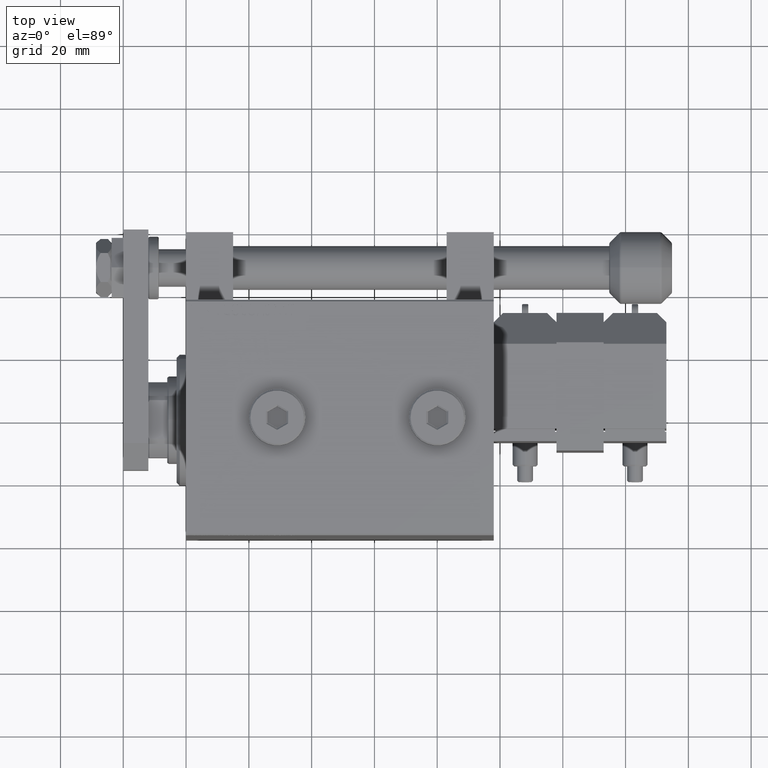
[diagram: clean part render]
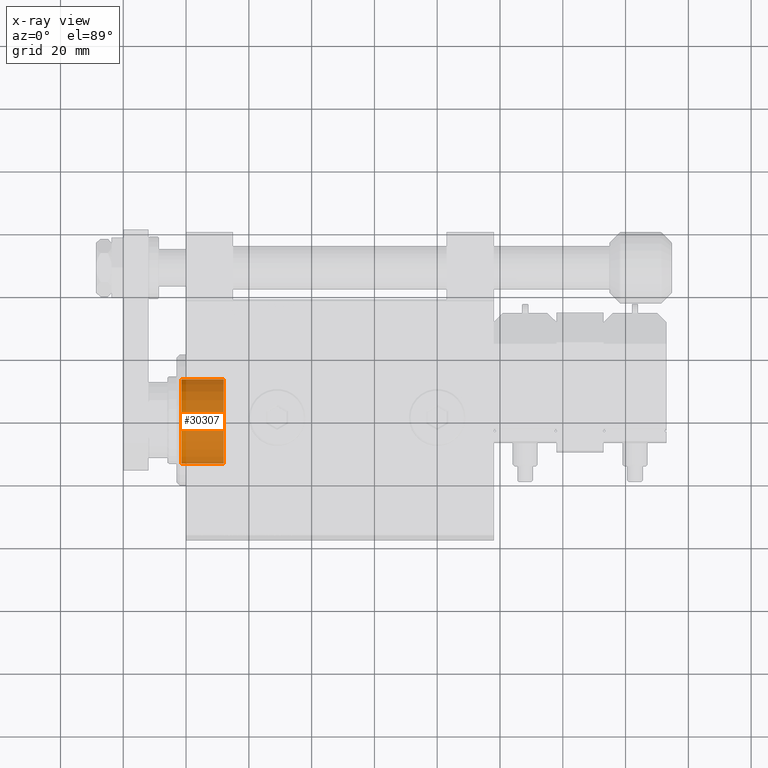
[diagram: x-ray — body ghosted, one internal face saturated and labeled with its STEP entity id]
A machine part, top view, then the same camera in x-ray: the body is ghosted and one INTERNAL B-rep face — a face not visible from any outside direction — is saturated and labeled: STEP entity #30307.
In plain terms, the highlighted cylindrical surface (partial cylindrical patch) has radius 14 mm, axis along (-1, 0, 0).
Its self-contained STEP definition (entity closure, byte-faithful):
#2323 = FACE_OUTER_BOUND ( 'NONE', #29974, .T. ) ;
#3841 = DIRECTION ( 'NONE',  ( 0.000000000000000000, 0.000000000000000000, -1.000000000000000000 ) ) ;
#4812 = CIRCLE ( 'NONE', #27684, 14.00000000000000178 ) ;
#5810 = CARTESIAN_POINT ( 'NONE',  ( -12.00000000000000000, 0.000000000000000000, 0.000000000000000000 ) ) ;
#7892 = LINE ( 'NONE', #12404, #11811 ) ;
#11744 = EDGE_CURVE ( 'NONE', #37147, #41787, #46906, .T. ) ;
#11811 = VECTOR ( 'NONE', #44274, 1000.000000000000000 ) ;
#12113 = ORIENTED_EDGE ( 'NONE', *, *, #22845, .F. ) ;
#12283 = DIRECTION ( 'NONE',  ( 1.000000000000000000, 0.000000000000000000, 0.000000000000000000 ) ) ;
#12404 = CARTESIAN_POINT ( 'NONE',  ( -12.00000000000000000, 1.714505518806294835E-15, 14.00000000000000178 ) ) ;
#12540 = CARTESIAN_POINT ( 'NONE',  ( 1.499999999999999556, 0.000000000000000000, 0.000000000000000000 ) ) ;
#15544 = CARTESIAN_POINT ( 'NONE',  ( -12.00000000000000000, 0.000000000000000000, 0.000000000000000000 ) ) ;
#16541 = ORIENTED_EDGE ( 'NONE', *, *, #36506, .T. ) ;
#18259 = DIRECTION ( 'NONE',  ( 1.000000000000000000, -0.000000000000000000, -0.000000000000000000 ) ) ;
#19214 = LINE ( 'NONE', #51621, #28234 ) ;
#20256 = DIRECTION ( 'NONE',  ( 1.000000000000000000, -0.000000000000000000, -0.000000000000000000 ) ) ;
#22520 = DIRECTION ( 'NONE',  ( 0.000000000000000000, 0.000000000000000000, -1.000000000000000000 ) ) ;
#22845 = EDGE_CURVE ( 'NONE', #52488, #47729, #4812, .T. ) ;
#26738 = CARTESIAN_POINT ( 'NONE',  ( 1.499999999999999556, 0.000000000000000000, -14.00000000000000178 ) ) ;
#27684 = AXIS2_PLACEMENT_3D ( 'NONE', #15544, #43951, #3841 ) ;
#28234 = VECTOR ( 'NONE', #20256, 1000.000000000000000 ) ;
#29974 = EDGE_LOOP ( 'NONE', ( #12113, #16541, #47284, #51346 ) ) ;
#30307 = ADVANCED_FACE ( 'NONE', ( #2323 ), #42961, .F. ) ;
#33739 = CARTESIAN_POINT ( 'NONE',  ( -12.00000000000000000, 1.714505518806294835E-15, 14.00000000000000178 ) ) ;
#36506 = EDGE_CURVE ( 'NONE', #52488, #37147, #7892, .T. ) ;
#36682 = CARTESIAN_POINT ( 'NONE',  ( -12.00000000000000000, 0.000000000000000000, -14.00000000000000178 ) ) ;
#37147 = VERTEX_POINT ( 'NONE', #49910 ) ;
#40695 = DIRECTION ( 'NONE',  ( 0.000000000000000000, 0.000000000000000000, -1.000000000000000000 ) ) ;
#41787 = VERTEX_POINT ( 'NONE', #26738 ) ;
#42961 = CYLINDRICAL_SURFACE ( 'NONE', #43957, 14.00000000000000178 ) ;
#43951 = DIRECTION ( 'NONE',  ( 1.000000000000000000, 0.000000000000000000, 0.000000000000000000 ) ) ;
#43957 = AXIS2_PLACEMENT_3D ( 'NONE', #5810, #18259, #22520 ) ;
#44274 = DIRECTION ( 'NONE',  ( 1.000000000000000000, -0.000000000000000000, -0.000000000000000000 ) ) ;
#44362 = AXIS2_PLACEMENT_3D ( 'NONE', #12540, #12283, #40695 ) ;
#44771 = EDGE_CURVE ( 'NONE', #47729, #41787, #19214, .T. ) ;
#46906 = CIRCLE ( 'NONE', #44362, 14.00000000000000178 ) ;
#47284 = ORIENTED_EDGE ( 'NONE', *, *, #11744, .T. ) ;
#47729 = VERTEX_POINT ( 'NONE', #36682 ) ;
#49910 = CARTESIAN_POINT ( 'NONE',  ( 1.499999999999999556, 1.714505518806294835E-15, 14.00000000000000178 ) ) ;
#51346 = ORIENTED_EDGE ( 'NONE', *, *, #44771, .F. ) ;
#51621 = CARTESIAN_POINT ( 'NONE',  ( -12.00000000000000000, 0.000000000000000000, -14.00000000000000178 ) ) ;
#52488 = VERTEX_POINT ( 'NONE', #33739 ) ;